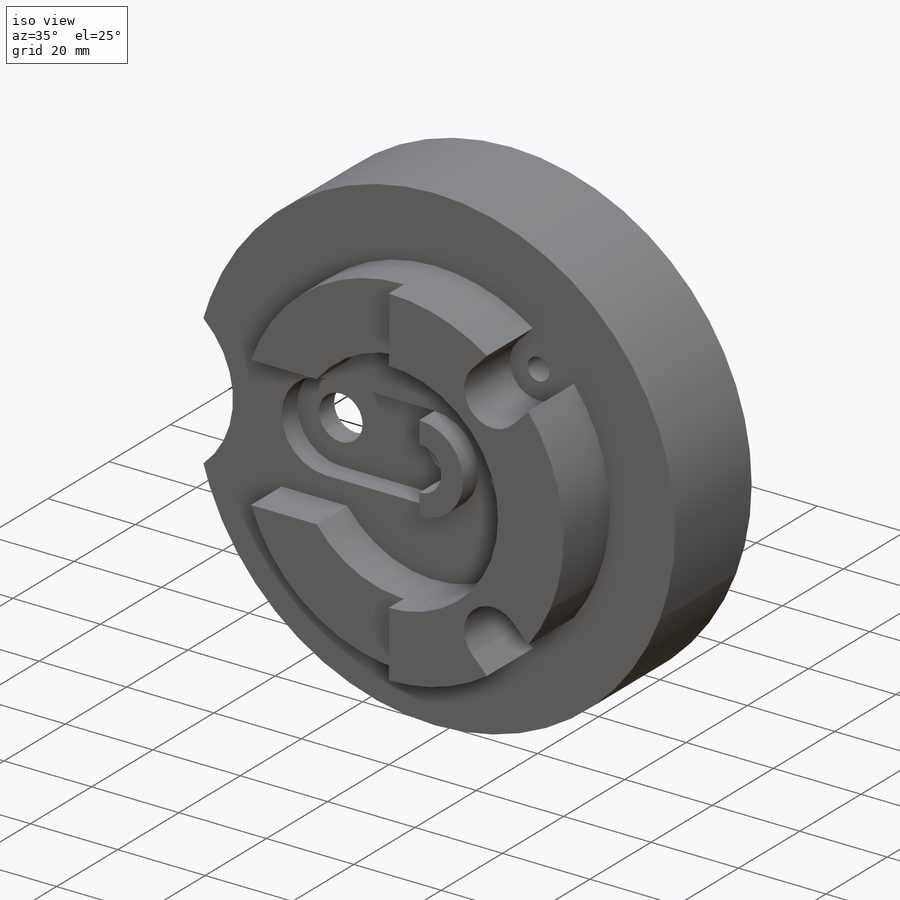
[diagram: iso view]
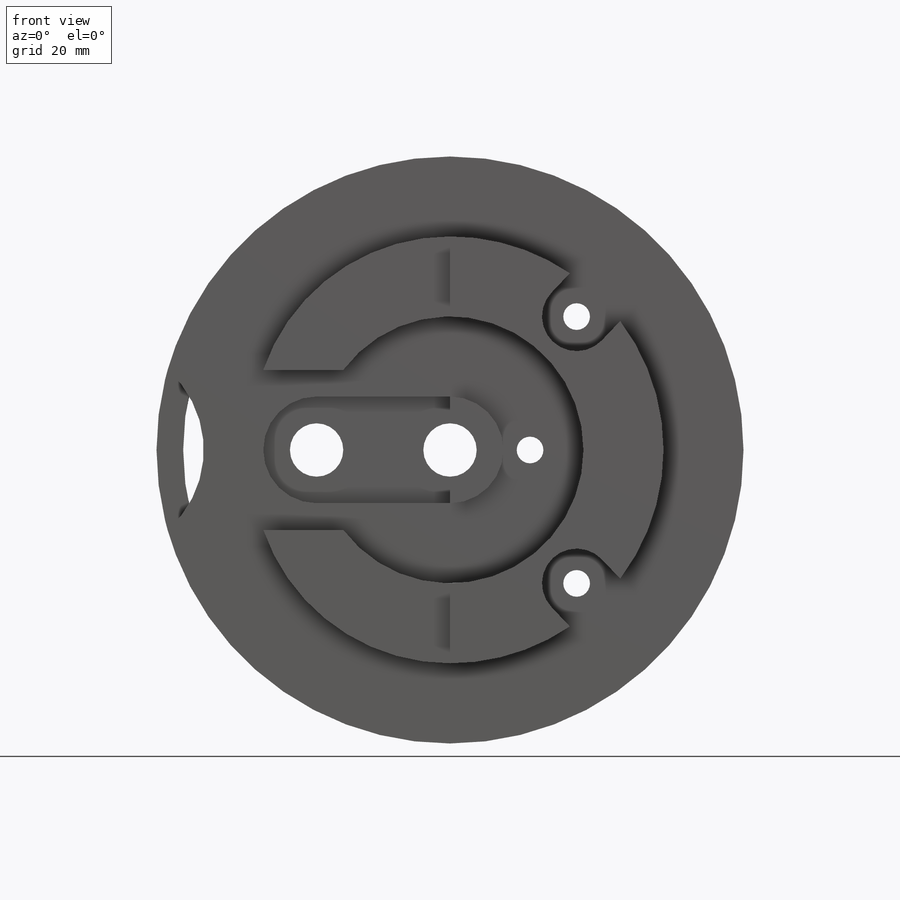
[diagram: front view]
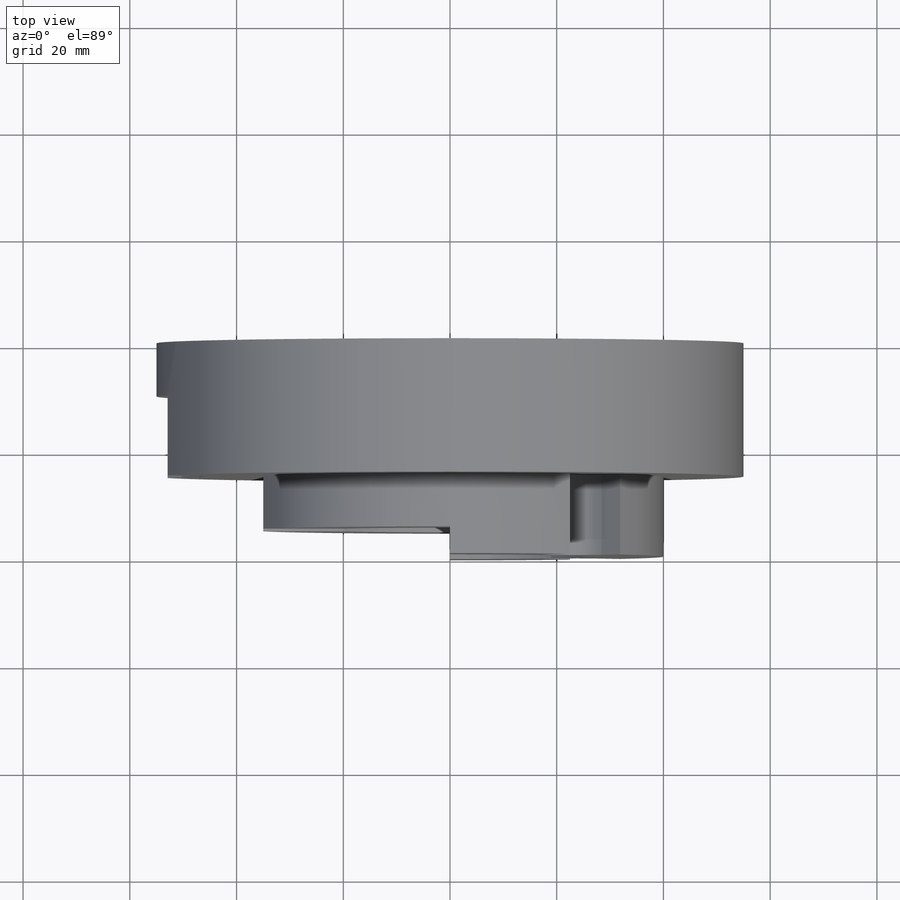
[diagram: top view]
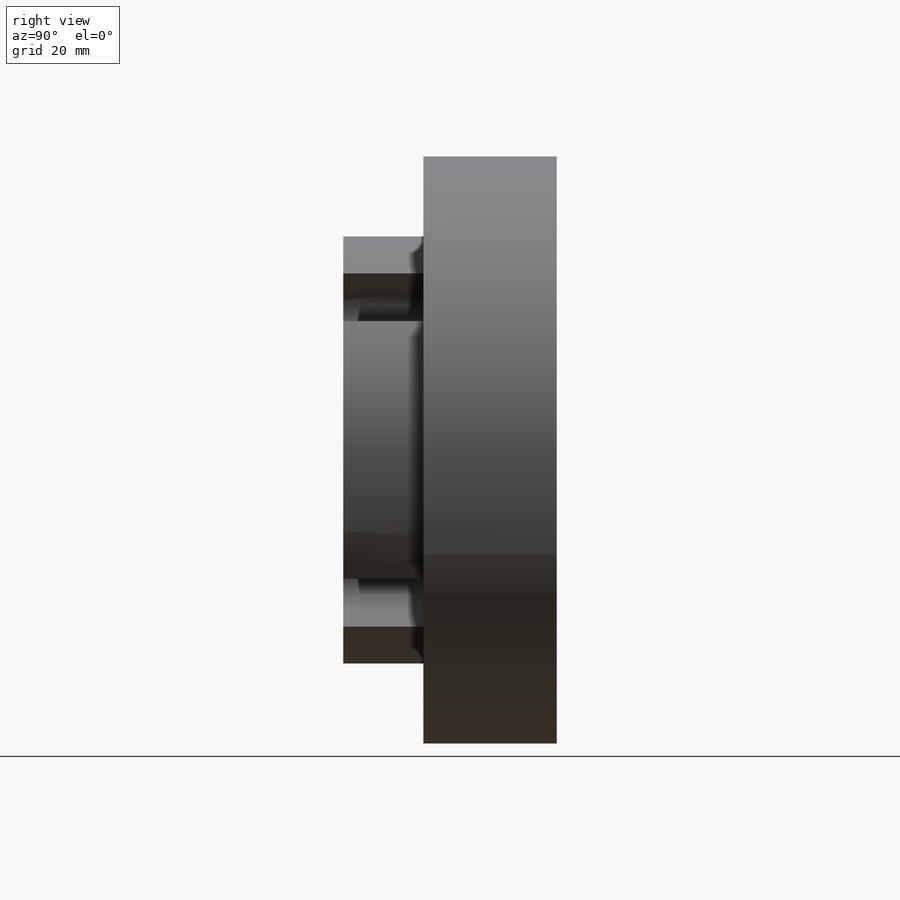
[diagram: right view]
SOLIDWORKS PART (.sldprt)
format: sldprt  version: not decoded by parser v0  size: 363,008 bytes
history: native  units: mm
features: sketch x12, cut_extrude x7, extrude x5, material x1 (+13 scaffold rows collapsed)
feature tree (38):
  scaffold x13  (default folders/planes/origin — collapsed)
  material  "Material <not specified>"
  sketch  "Sketch3"  dims[D1=110.0mm]
  extrude  "Boss-Extrude2"  Depth=25mm
  sketch  "Sketch4"  dims[D1=100.0mm]
  cut_extrude  "Cut-Extrude1"  Depth=15mm
  sketch  "Sketch5"  dims[c1.D3=~20.719591mm c1.D2=20.0mm c2.D3=55.0mm c2.D1=15.0mm c2.D2=~52.915026mm c3.D1=52.5mm c3.D2=52.5mm c3.D3=~16.393596mm c4.D1=15.0mm c4.D2=15.0mm c4.D3=~67.208432mm c5.D1=30.0mm]
  cut_extrude  "Cut-Extrude2"  Depth=15mm
  sketch  "Sketch6"  dims[c1.D3=~20.190759mm c1.D4=~20.700069mm c2.D3=25.0mm c2.D4=~39.230009mm c3.D3=25.0mm c3.D4=37.0mm c3.D1=15.0mm c3.D2=15.0mm c4.D3=20.0mm c4.D4=~20.700069mm c4.D5=15.0mm c4.D6=20.0mm]
  extrude  "Boss-Extrude3"  Depth=10mm
  sketch  "Sketch7"  dims[c1.D2=37.0mm c1.D1=15.0mm c2.D2=30.0mm]
  extrude  "Boss-Extrude4"  Depth=10mm
  sketch  "Sketch8"  dims[D1=25.0mm D2=40.0mm]
  extrude  "Boss-Extrude5"  Depth=15mm
  sketch  "Sketch9"  dims[c1.D2=6.5mm c1.D3=6.5mm c1.D4=40.0mm c2.D2=6.5mm c2.D4=40.0mm c2.D6=6.5mm c2.D8=40.0mm c2.D1=5.0mm c3.D2=25.0mm c3.D3=~25.037289mm c3.D4=~12.998673mm c3.D1=5.0mm c4.D2=~16.733964mm c4.D3=25.0mm c4.D5=5.0mm c4.D7=5.0mm c5.D5=5.0mm c5.D7=25.0mm]
  cut_extrude  "Cut-Extrude4"  Depth=15mm
  sketch  "Sketch11"  dims[D1=5.0mm D2=5.0mm]
  cut_extrude  "Cut-Extrude7"  Depth=25mm
  sketch  "Sketch12"  dims[D1=5.0mm D2=15.0mm]
  cut_extrude  "Cut-Extrude9"  Depth=10mm
  sketch  "Sketch13"  dims[D2=10.0mm D1=25.0mm D3=15.0mm]
  cut_extrude  "Cut-Extrude12"  Depth=5mm
  sketch  "Sketch14"  dims[D1=10.0mm D2=10.0mm D3=25.0mm]
  cut_extrude  "Cut-Extrude13"  Depth=10mm
  sketch  "Sketch15"  dims[D1=5.0mm D2=10.0mm]
  extrude  "Boss-Extrude6"  Depth=10mm
decode coverage: 24 of 24 modeling features carry decoded parameters
note: ~ marks probable driven/reference dimensions
note: suppression state not decoded; provenance and decode notes live in map.json
